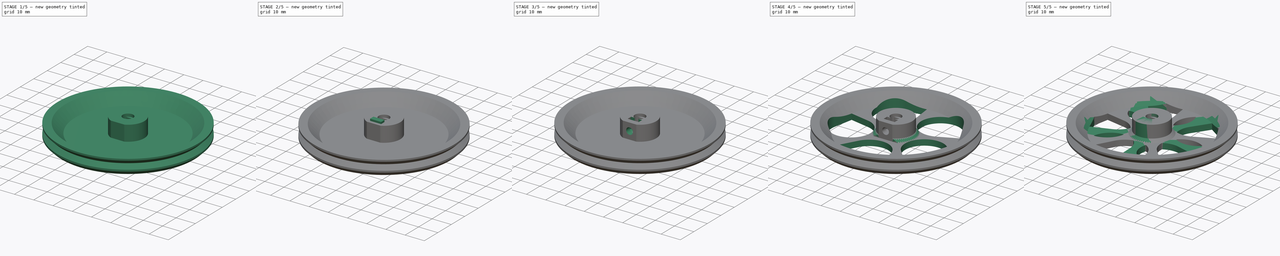
[diagram: build sequence overview — one tinted view per stage of 5, left to right]
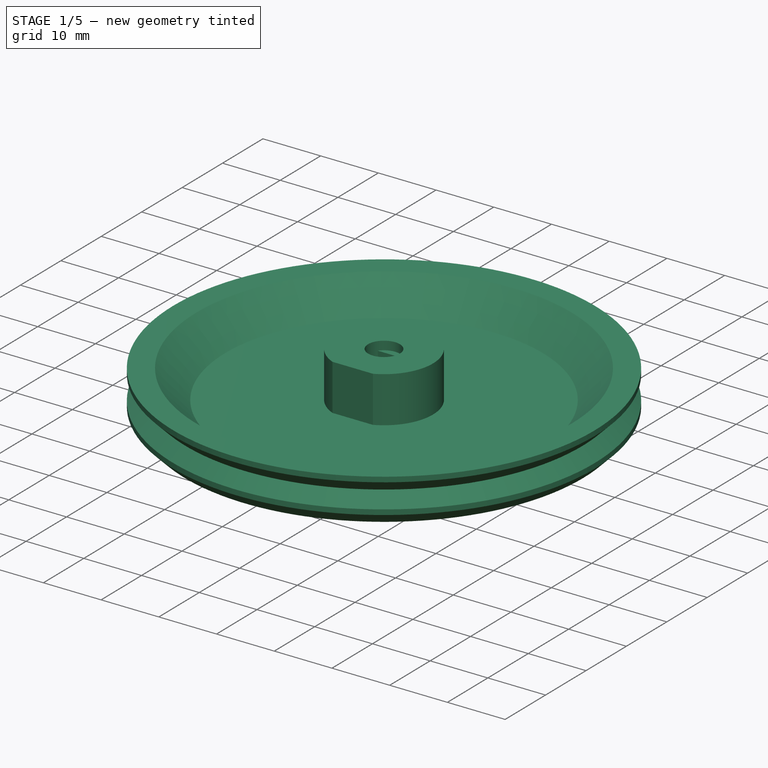
[diagram: stage 1 of 5 — iso view after this stage's code; geometry added in this stage tinted green]
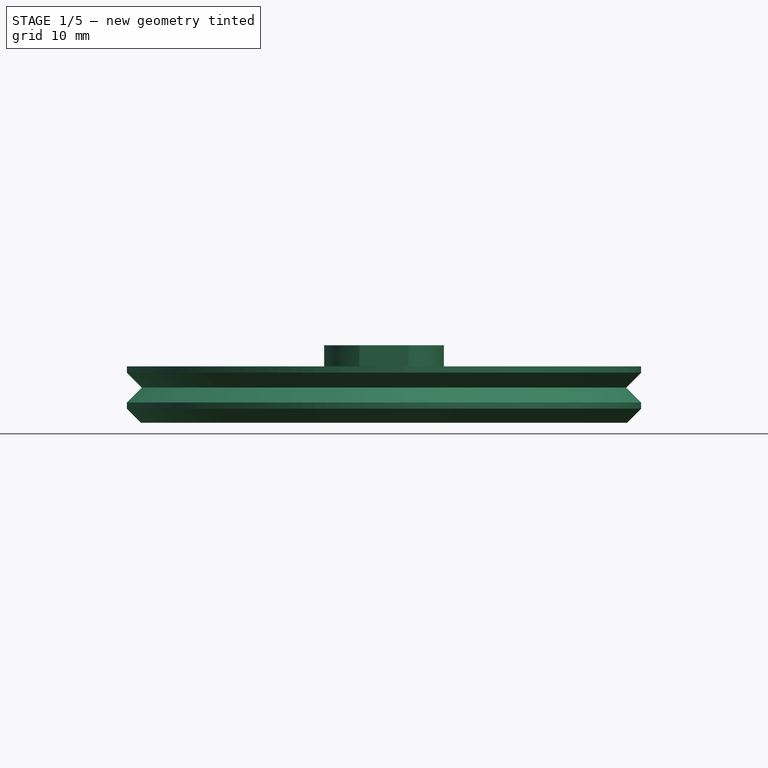
[diagram: stage 1 of 5 — front view after this stage's code; geometry added in this stage tinted green]
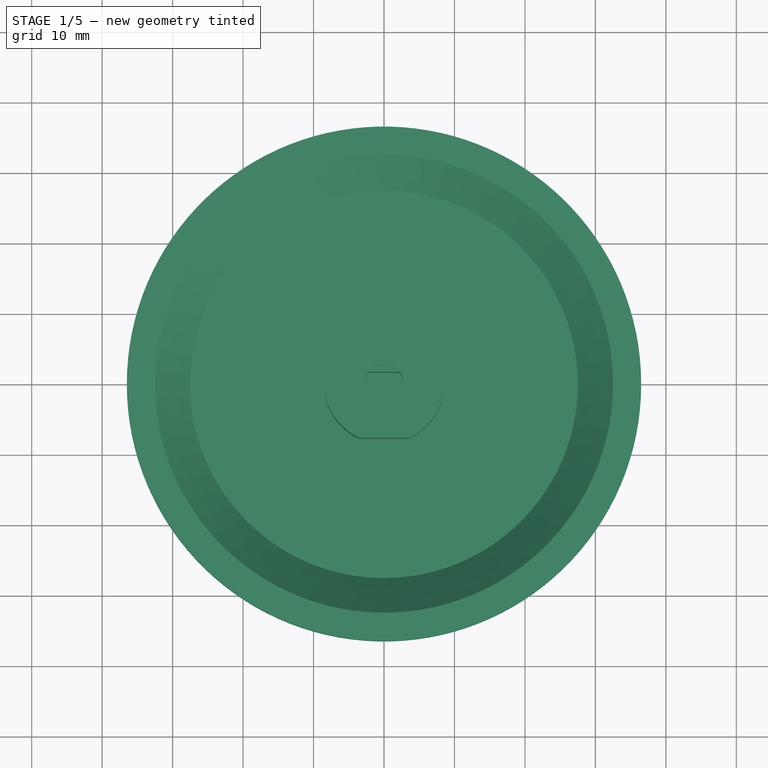
[diagram: stage 1 of 5 — top view after this stage's code; geometry added in this stage tinted green]
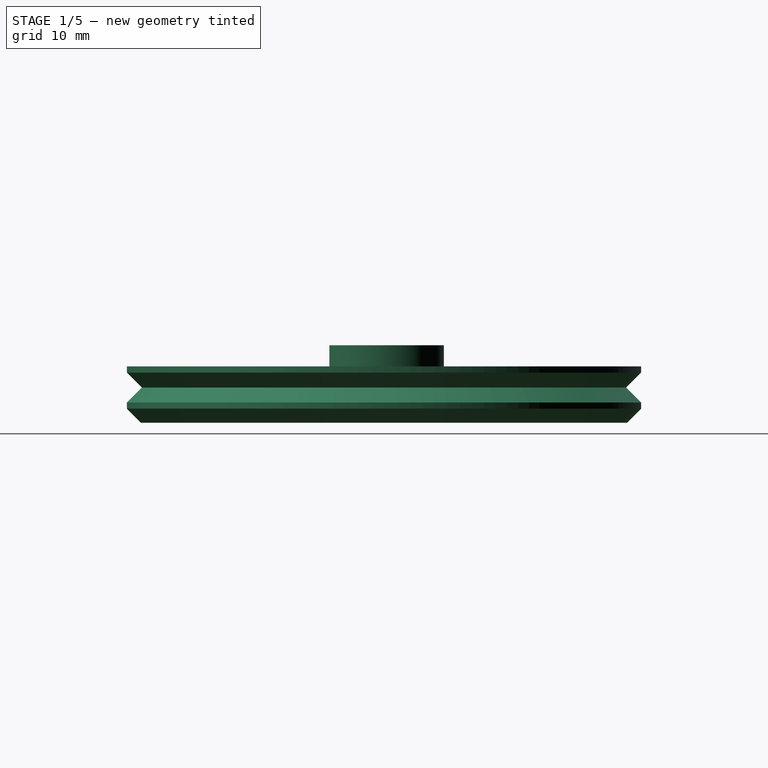
[diagram: stage 1 of 5 — right view after this stage's code; geometry added in this stage tinted green]
FCSTD DOCUMENT  (FreeCAD 0.16R)
Label: wheel
License: The MIT License
LicenseURL: http://opensource.org/licenses/MIT
objects: Sketcher::SketchObject×4, Part::FeaturePython×3, PartDesign::Pad×2, Part::MultiFuse×2, Part::Feature×2, App::DocumentObjectGroup×2, PartDesign::Revolution×1, Part::Box×1, Part::Cylinder×1, Part::Cut×1, Part::Chamfer×1, PartDesign::Pocket×1, PartDesign::PolarPattern×1, Part::Mirroring×1
note: 25 computed .brp shape members not serialized (recipe doc carries the construction recipe); baked Part::Feature solids carry a one-line shape summary decoded from their .brp

FEATURE [Sketcher::SketchObject] Sketch  label="section-sketch"
  Placement = pos=(0,0,0) rot=(1,0,0;1.5708rad)
  sketch-geometry (12):
    g0: Circle [constr] CenterX=36.5 CenterY=0 CenterZ=0 NormalX=0 NormalY=0 NormalZ=1 Radius=1.5
    g1: LineSegment StartX=0 StartY=-2 StartZ=0 EndX=27.5 EndY=-2 EndZ=0
    g2: LineSegment StartX=27.5 StartY=-2 StartZ=0 EndX=32.5 EndY=3 EndZ=0
    g3: LineSegment StartX=32.5 StartY=3 StartZ=0 EndX=36.5 EndY=3 EndZ=0
    g4: LineSegment StartX=36.5 StartY=3 StartZ=0 EndX=36.5 EndY=2.12132 EndZ=0
    g5: LineSegment StartX=36.5 StartY=2.12132 StartZ=0 EndX=34.3787 EndY=0 EndZ=0
    g6: LineSegment StartX=34.3787 StartY=0 StartZ=0 EndX=36.5 EndY=-2.12132 EndZ=0
    g7: LineSegment StartX=36.5 StartY=-2.12132 StartZ=0 EndX=36.5 EndY=-3 EndZ=0
    g8: LineSegment StartX=36.5 StartY=-3 StartZ=0 EndX=34.5 EndY=-5 EndZ=0
    g9: LineSegment StartX=34.5 StartY=-5 StartZ=0 EndX=0 EndY=-5 EndZ=0
    g10: LineSegment StartX=0 StartY=-5 StartZ=0 EndX=0 EndY=-2 EndZ=0
    g11: LineSegment [constr] StartX=36.5 StartY=2.12132 StartZ=0 EndX=36.5 EndY=-2.12132 EndZ=0
  constraints (34):
    c: PointOnObject(g0,g-1)
    c: Radius(g0) = 1.5
    c: DistanceX(g-1,g0) = 36.5
    c: Coincident(g1,g2)
    c: Coincident(g2,g3)
    c: Coincident(g3,g4)
    c: Coincident(g4,g5)
    c: Coincident(g6,g7)
    c: Coincident(g7,g8)
    c: Coincident(g8,g9)
    c: Coincident(g9,g10)
    c: Coincident(g10,g1)
    c: Vertical(g10)
    c: Vertical(g7)
    c: Vertical(g4)
    c: Horizontal(g9)
    c: Horizontal(g1)
    c: Horizontal(g3)
    c: PointOnObject(g1,g-2)
    c: Tangent(g0,g6)
    c: Tangent(g5,g0)
    c: DistanceY(g10) = 3
    c: Vertical(g11)
    c: PointOnObject(g0,g11)
    c: Coincident(g11,g4)
    c: Coincident(g11,g6)
    c: DistanceY(g3,g7) = -6
    c: Equal(g7,g4)
    c: DistanceY(g-1,g1) = -2
    c: Perpendicular(g5,g6)
    c: PointOnObject(g5,g-1)
    c: Parallel(g2,g5)
    c: Parallel(g5,g8)
    c: DistanceX(g3) = 4
FEATURE [PartDesign::Revolution] Revolution  label="section-revolution"
  Angle = 360
  Axis = (0,0,1)
  Base = (0,0,0)
  Placement = pos=(0,0,0) rot=(1,0,0;1.5708rad)
  ReferenceAxis = -> Sketch [V_Axis]
  Reversed = true
  Sketch = -> Sketch
FEATURE [Part::Box] Box  label="shaft-recess-cube"
  Height = 7.5
  Length = 6
  Placement = pos=(-3,1.625,-3) rot=(0,0,1;0rad)
  Width = 3
FEATURE [Sketcher::SketchObject] Sketch003  label="shaft-sketch"
  Placement = pos=(0,0,-2) rot=(0,0,1;3.14159rad)
  Support = -> Revolution [Face1]
  sketch-geometry (3):
    g0: ArcOfCircle CenterX=0 CenterY=0 CenterZ=0 NormalX=0 NormalY=0 NormalZ=1 Radius=8.5 StartAngle=1.99403 EndAngle=7.43075
    g1: Circle CenterX=0 CenterY=0 CenterZ=0 NormalX=0 NormalY=0 NormalZ=1 Radius=2.75
    g2: LineSegment StartX=3.49106 StartY=7.75 StartZ=0 EndX=-3.49106 EndY=7.75 EndZ=0
  constraints (8):
    c: Coincident(g0,g-1)
    c: Radius(g0) = 8.5
    c: Coincident(g1,g-1)
    c: Radius(g1) = 2.75
    c: Horizontal(g2)
    c: Coincident(g2,g0)
    c: Coincident(g2,g0)
    c: DistanceY(g-1,g0) = 7.75
FEATURE [PartDesign::Pad] Pad001  label="shaft-pad"
  Length = 8
  Length2 = 100
  Placement = pos=(0,0,0) rot=(1,0,0;1.5708rad)
  Sketch = -> Sketch003
  Type = 0
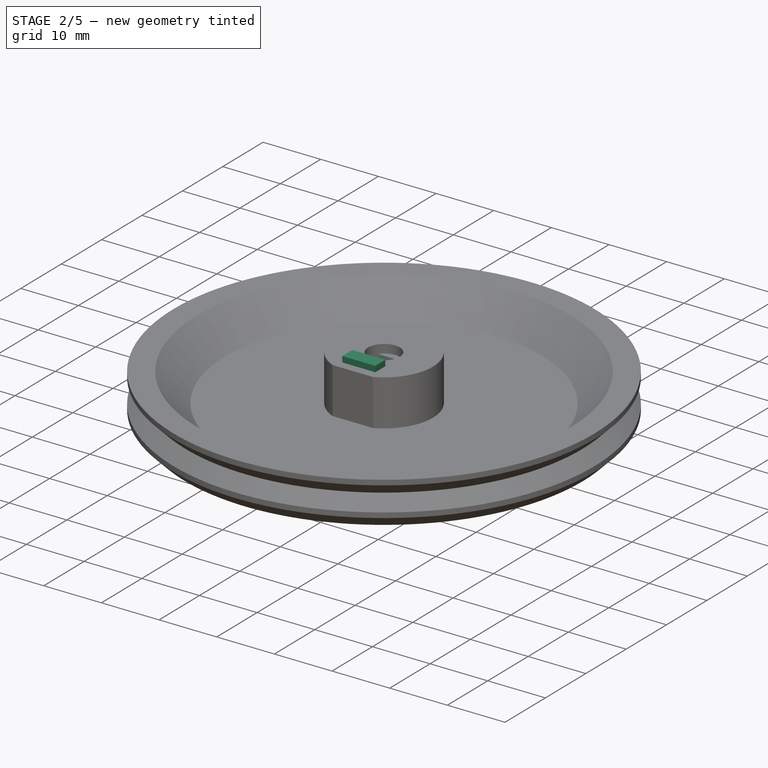
[diagram: stage 2 of 5 — iso view after this stage's code; geometry added in this stage tinted green]
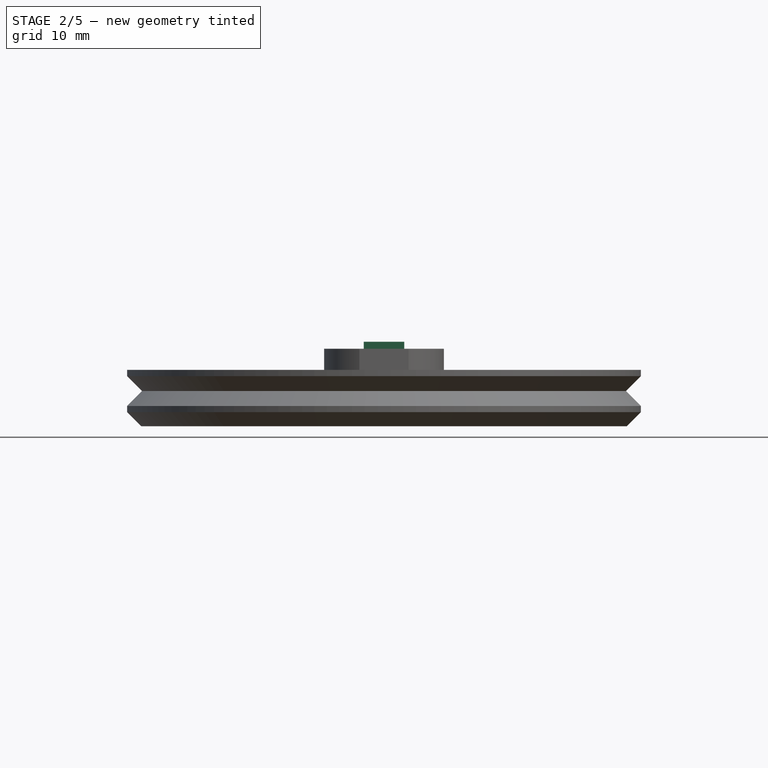
[diagram: stage 2 of 5 — front view after this stage's code; geometry added in this stage tinted green]
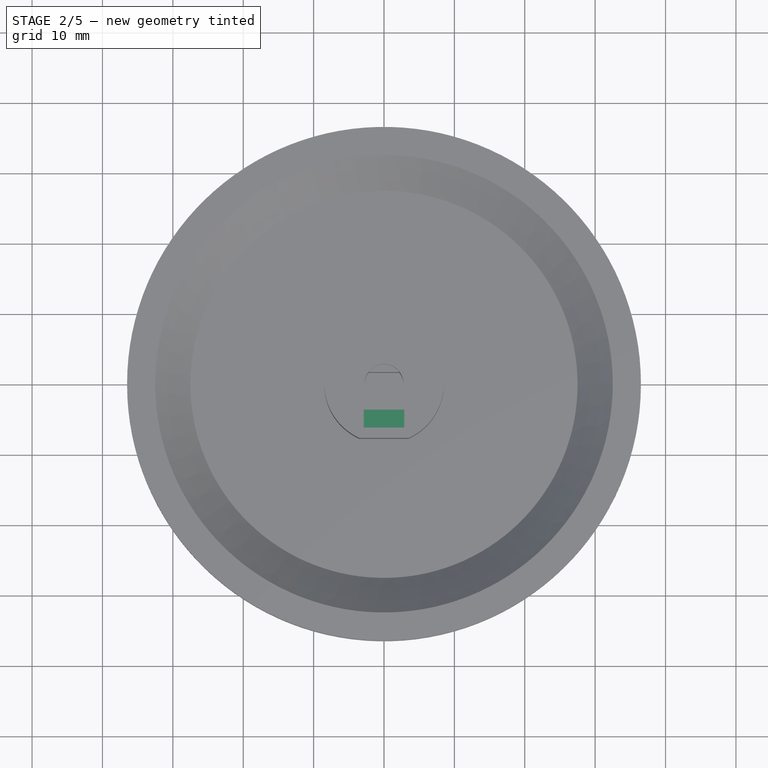
[diagram: stage 2 of 5 — top view after this stage's code; geometry added in this stage tinted green]
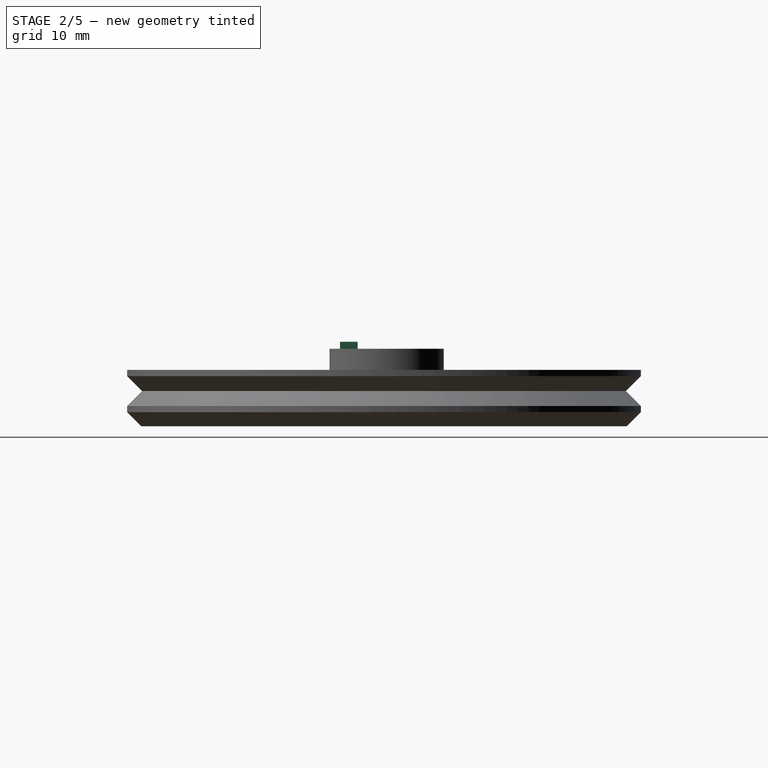
[diagram: stage 2 of 5 — right view after this stage's code; geometry added in this stage tinted green]
FEATURE [Sketcher::SketchObject] Sketch002  label="captive-nut-sketch"
  Placement = pos=(0,0,0) rot=(1,0,0;1.5708rad)
  sketch-geometry (6):
    g0: Circle [constr] CenterX=0 CenterY=0 CenterZ=0 NormalX=0 NormalY=0 NormalZ=1 Radius=3.31976
    g1: LineSegment StartX=-2.875 StartY=5 StartZ=0 EndX=2.875 EndY=5 EndZ=0
    g2: LineSegment StartX=2.875 StartY=5 StartZ=0 EndX=2.875 EndY=-1.65988 EndZ=0
    g3: LineSegment StartX=2.875 StartY=-1.65988 StartZ=0 EndX=0 EndY=-3.31976 EndZ=0
    g4: LineSegment StartX=0 StartY=-3.31976 StartZ=0 EndX=-2.875 EndY=-1.65988 EndZ=0
    g5: LineSegment StartX=-2.875 StartY=-1.65988 StartZ=0 EndX=-2.875 EndY=5 EndZ=0
  constraints (17):
    c: Coincident(g0,g-1)
    c: Horizontal(g1)
    c: Coincident(g1,g2)
    c: Coincident(g2,g3)
    c: Coincident(g3,g4)
    c: Coincident(g4,g5)
    c: Coincident(g5,g1)
    c: Vertical(g5)
    c: Vertical(g2)
    c: PointOnObject(g2,g0)
    c: PointOnObject(g3,g0)
    c: PointOnObject(g4,g0)
    c: Angle(g3,g4) = 2.0944
    c: DistanceY(g-1,g1) = 5
    c: DistanceX(g1) = 5.75
    c: Equal(g4,g3)
    c: PointOnObject(g3,g-2)
FEATURE [PartDesign::Pad] Pad  label="captive-nut-pad"
  Length = 2.5
  Length2 = 100
  Placement = pos=(0,0,0) rot=(1,0,0;1.5708rad)
  Sketch = -> Sketch002
  Type = 0
FEATURE [Part::FeaturePython] Clone  label="captive-nut"  # Draft clone (typed FeaturePython)
  Objects = -> [Pad]
  Placement = pos=(0,-3.75,2) rot=(1,0,0;1.5708rad)
  Scale = (1,1,1)
FEATURE [Part::MultiFuse] Fusion001  label="shaft-fusion"
  Shapes = -> [Pad001,Box]
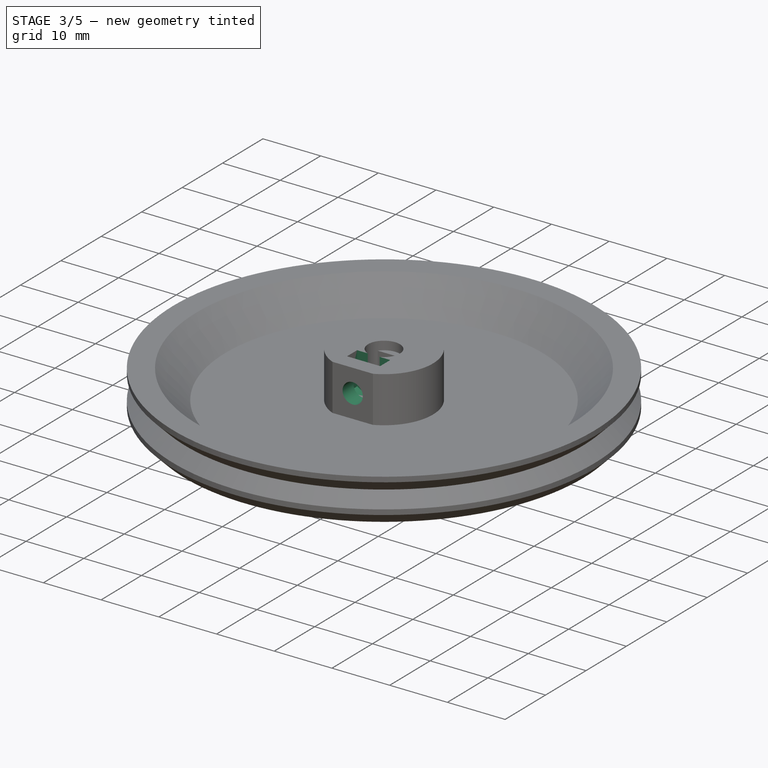
[diagram: stage 3 of 5 — iso view after this stage's code; geometry added in this stage tinted green]
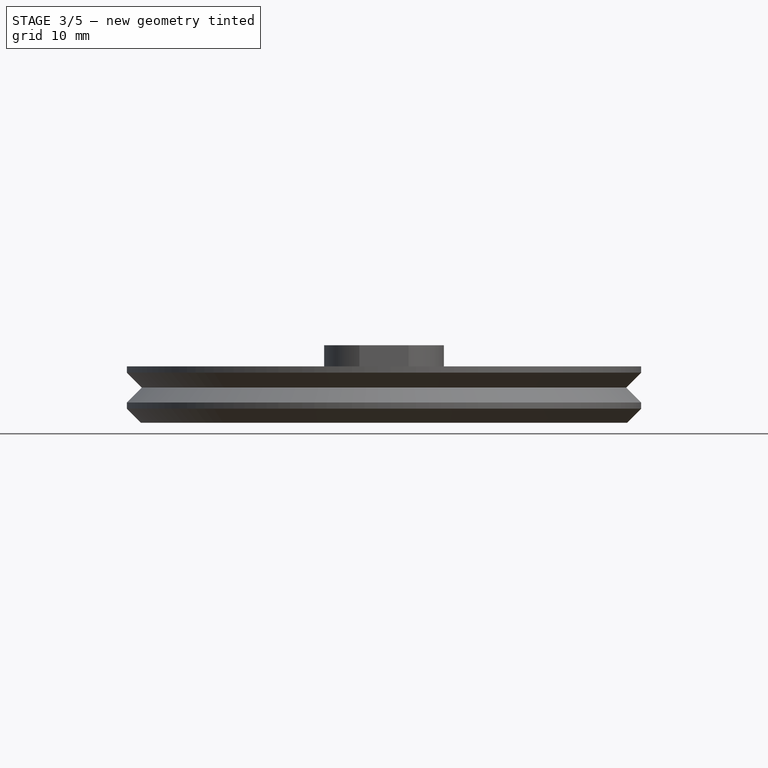
[diagram: stage 3 of 5 — front view after this stage's code; geometry added in this stage tinted green]
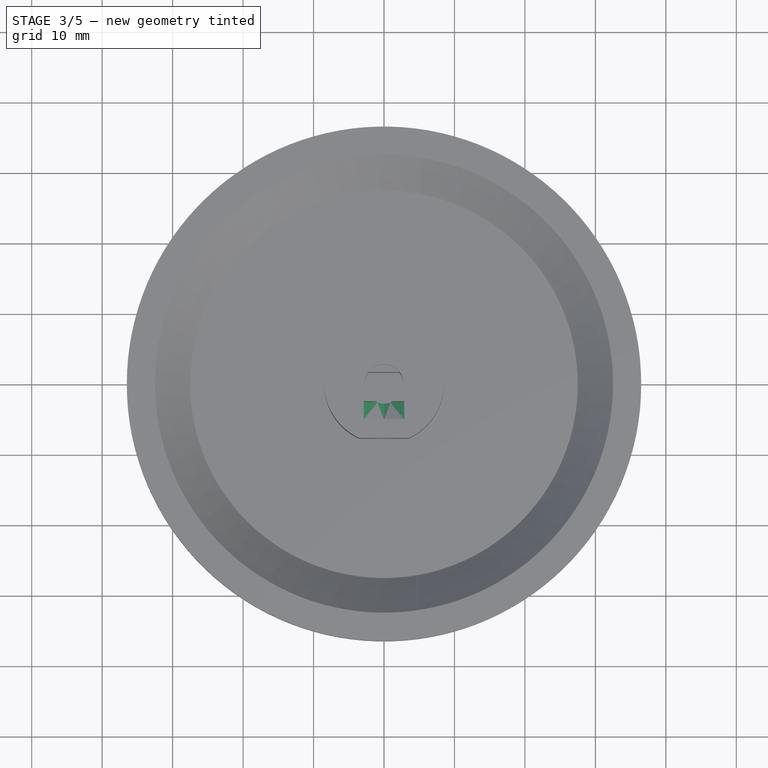
[diagram: stage 3 of 5 — top view after this stage's code; geometry added in this stage tinted green]
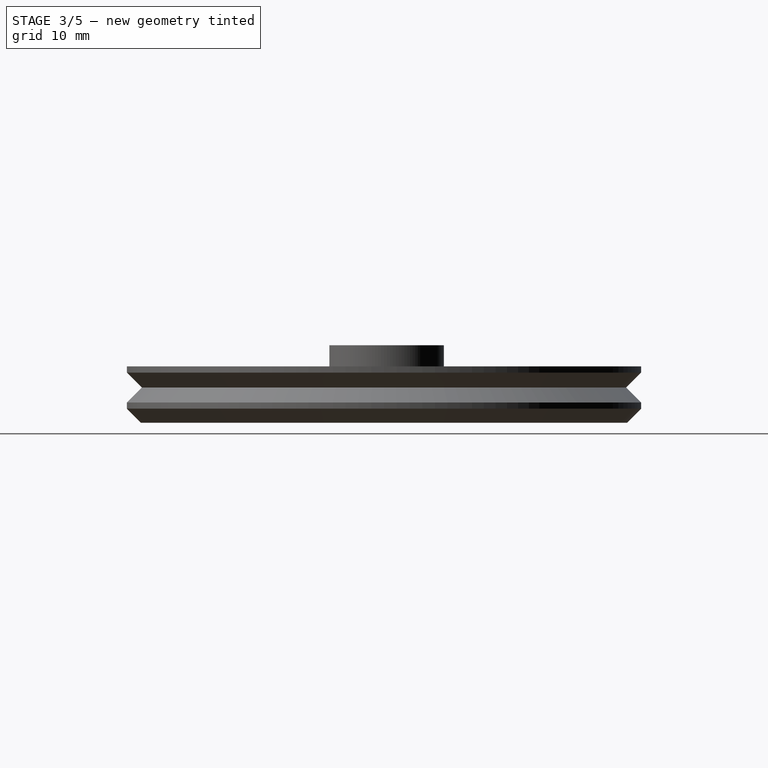
[diagram: stage 3 of 5 — right view after this stage's code; geometry added in this stage tinted green]
FEATURE [Part::Cylinder] Cylinder001  label="screw-cylinder"
  Angle = 360
  Height = 10
  Placement = pos=(0,0,2) rot=(1,0,0;1.5708rad)
  Radius = 1.75
FEATURE [Part::MultiFuse] Fusion  label="captive-nut-screw-fusion"
  Placement = pos=(0,1.2,0) rot=(0,0,1;0rad)
  Shapes = -> [Cylinder001,Clone]
FEATURE [Part::Cut] Cut  label="shaft-nut-cut"
  Base = -> Fusion001
  Tool = -> Fusion
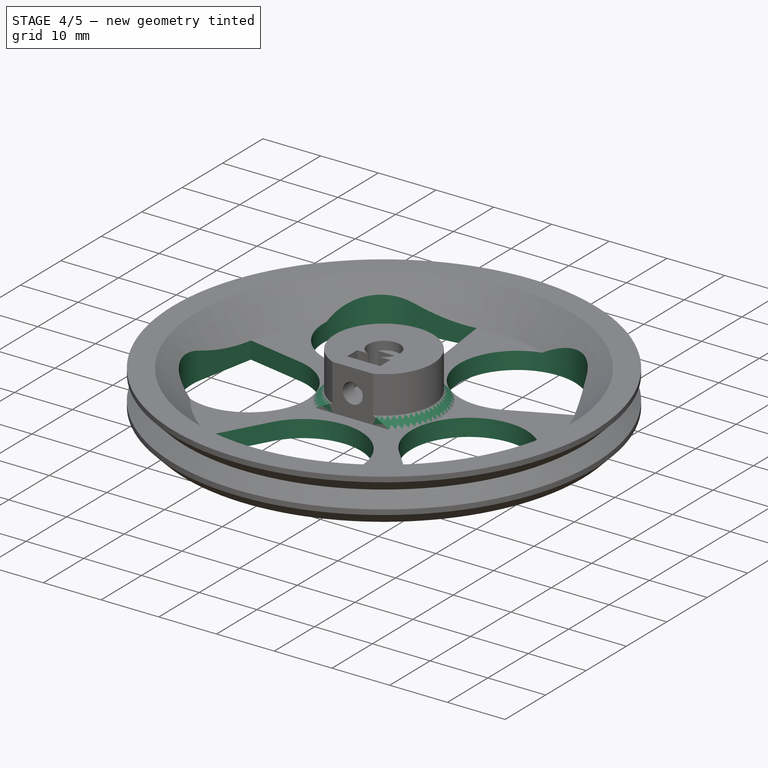
[diagram: stage 4 of 5 — iso view after this stage's code; geometry added in this stage tinted green]
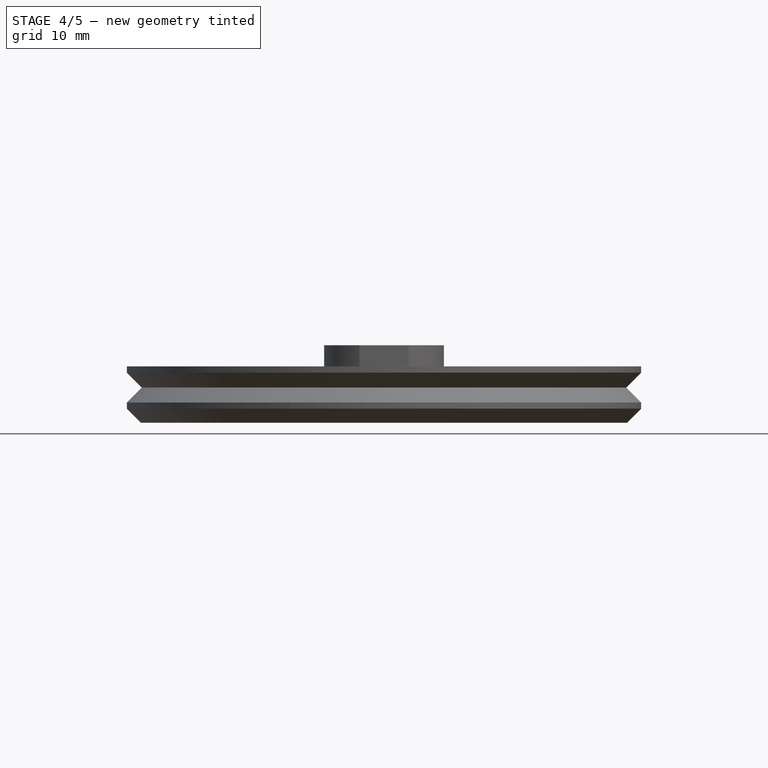
[diagram: stage 4 of 5 — front view after this stage's code; geometry added in this stage tinted green]
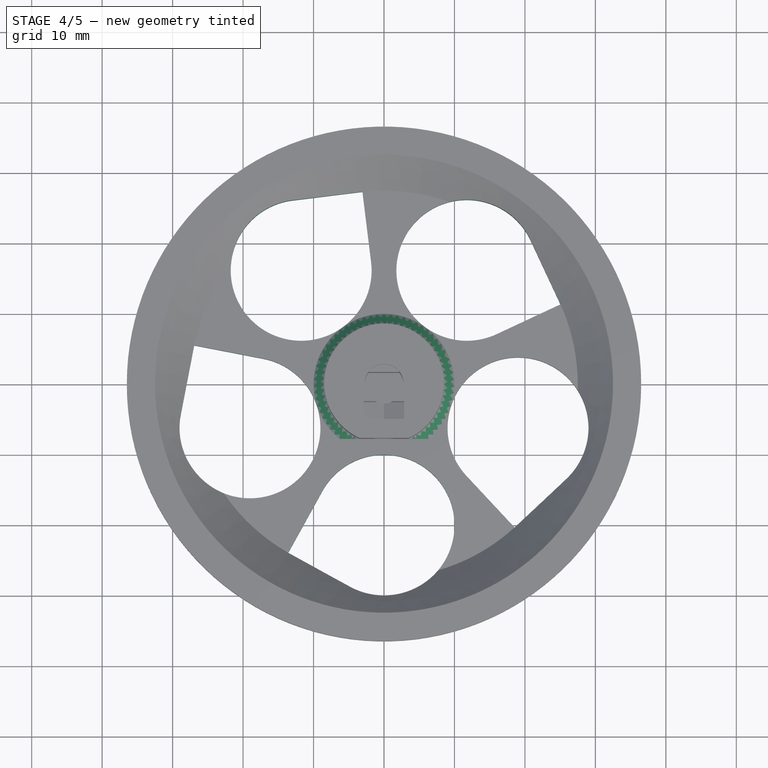
[diagram: stage 4 of 5 — top view after this stage's code; geometry added in this stage tinted green]
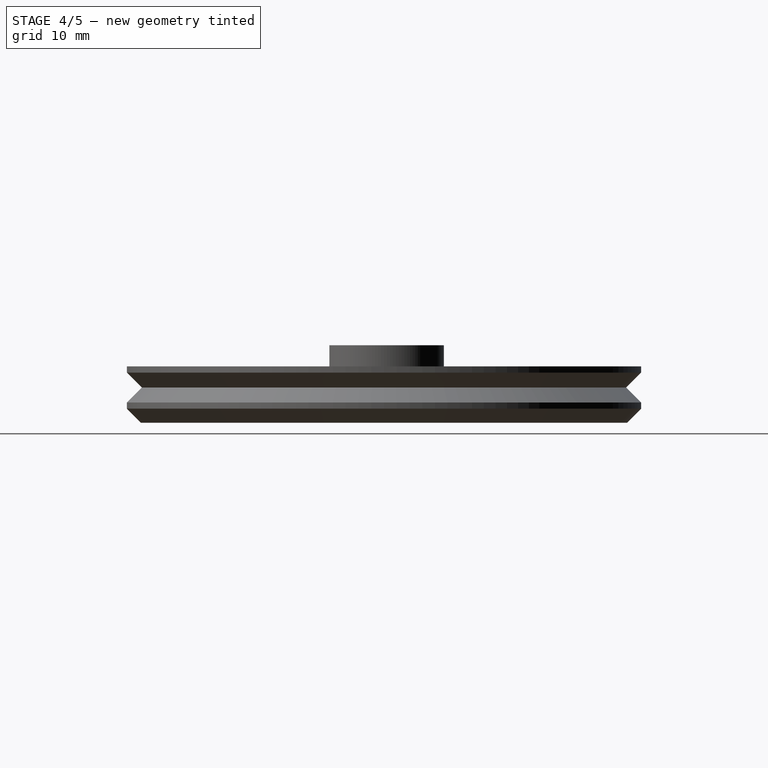
[diagram: stage 4 of 5 — right view after this stage's code; geometry added in this stage tinted green]
FEATURE [Part::Chamfer] Chamfer  label="shaft-chamfer"
  Base = -> Cut
  Edges = 1 edges r=1.5: [Edge4]
FEATURE [Sketcher::SketchObject] Sketch004  label="wheel-cutout-sketch"
  Placement = pos=(0,0,-5) rot=(1,0,0;3.14159rad)
  Support = -> Chamfer [Face27]
  sketch-geometry (4):
    g0: ArcOfCircle CenterX=0 CenterY=20 CenterZ=0 NormalX=0 NormalY=0 NormalZ=1 Radius=10 StartAngle=3.64714 EndAngle=8.35953
    g1: Circle [constr] CenterX=0 CenterY=0 CenterZ=0 NormalX=0 NormalY=0 NormalZ=1 Radius=27.5
    g2: LineSegment StartX=-8.7491 StartY=15.1571 StartZ=0 EndX=-13.592 EndY=23.9062 EndZ=0
    g3: LineSegment StartX=-13.592 StartY=23.9062 StartZ=0 EndX=-4.84285 EndY=28.7491 EndZ=0
  constraints (9):
    c: Radius(g0) = 10
    c: Coincident(g1,g-1)
    c: Tangent(g0,g2)
    c: Tangent(g0,g3)
    c: Perpendicular(g2,g3)
    c: PointOnObject(g2,g1)
    c: Radius(g1) = 27.5
    c: DistanceY(g-1,g0) = 20
    c: PointOnObject(g0,g-2)
FEATURE [Part::Feature] Part__Feature  label="oring-right"
  shape: bbox 82.26 x 82.26 x 3 mm, 1 faces (baked)
FEATURE [Part::Feature] Part__Feature001  label="oring-left"
  shape: bbox 82.26 x 82.26 x 3 mm, 1 faces (baked)
FEATURE [App::DocumentObjectGroup] Group  label="components"
  Group = -> [Part__Feature001,Part__Feature]
FEATURE [PartDesign::Pocket] Pocket
  Length = 5
  Sketch = -> Sketch004
  Type = 1
FEATURE [PartDesign::PolarPattern] PolarPattern
  Angle = 360
  Axis = -> Sketch004 [N_Axis]
  Occurrences = 5
  Originals = -> [Pocket]
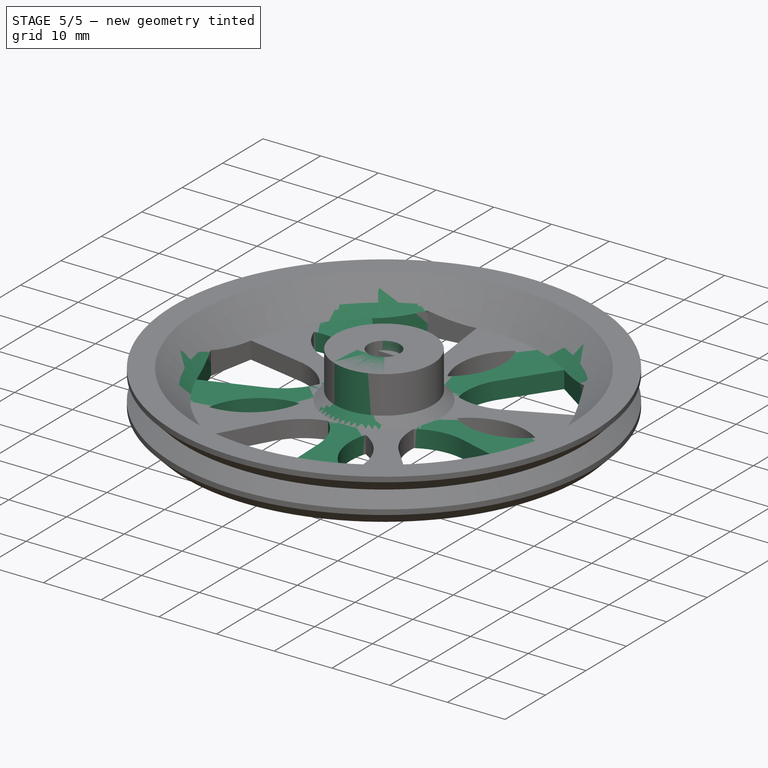
[diagram: stage 5 of 5 — iso view after this stage's code; geometry added in this stage tinted green]
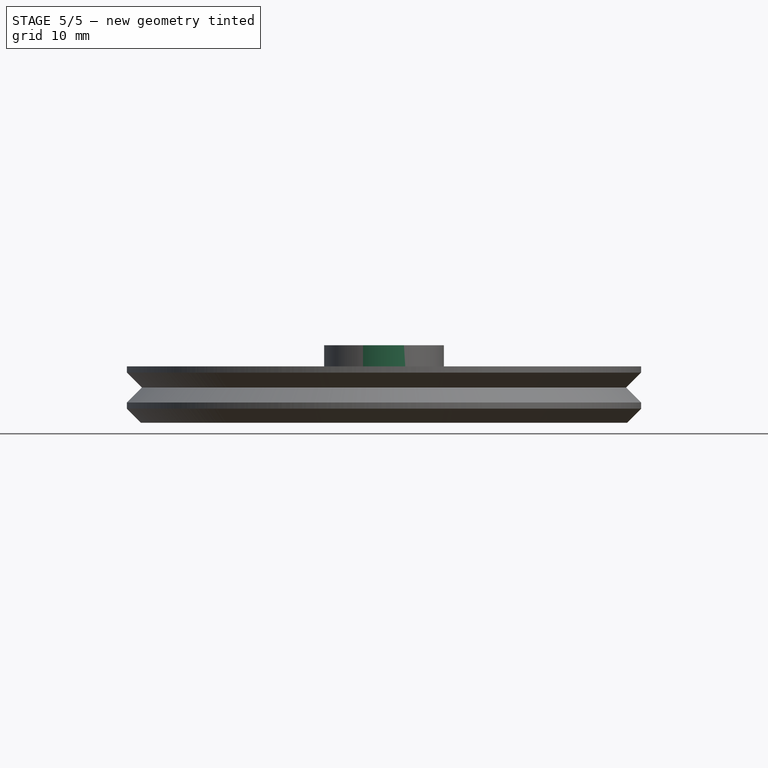
[diagram: stage 5 of 5 — front view after this stage's code; geometry added in this stage tinted green]
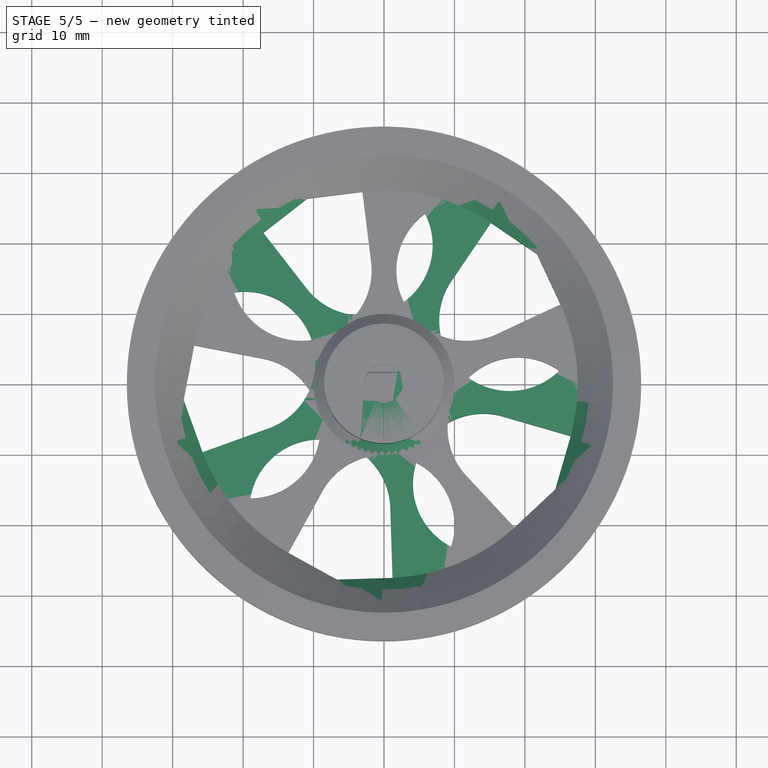
[diagram: stage 5 of 5 — top view after this stage's code; geometry added in this stage tinted green]
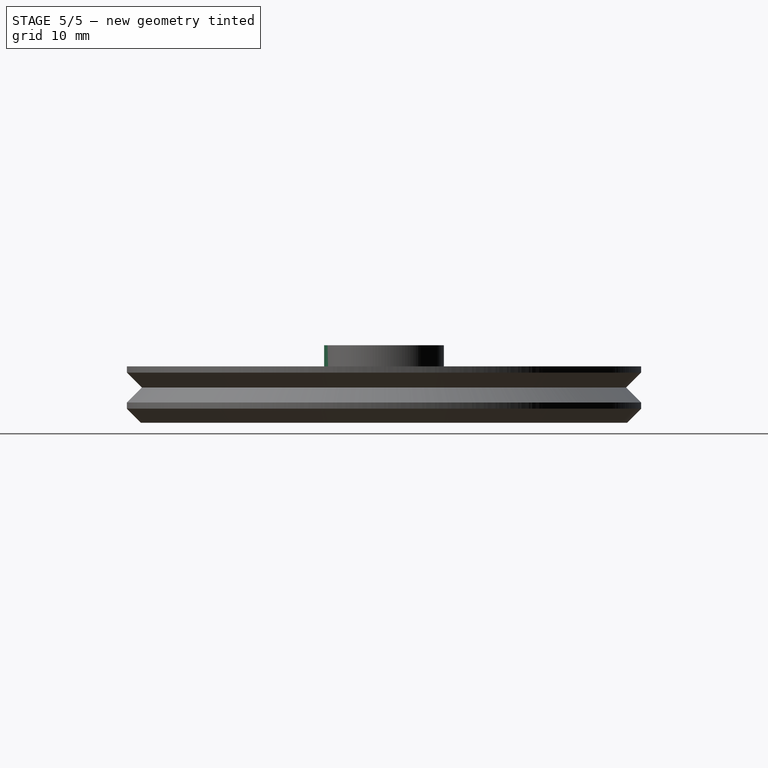
[diagram: stage 5 of 5 — right view after this stage's code; geometry added in this stage tinted green]
FEATURE [Part::FeaturePython] Clone001  label="wheel-r"  # Draft clone (typed FeaturePython)
  Objects = -> [PolarPattern]
  Scale = (1,1,1)
FEATURE [Part::Mirroring] mirror  label="Mirror of PolarPattern"
  Base = (0,0,0)
  Normal = (0.648762,-0.760991,0)
  Source = -> PolarPattern
FEATURE [App::DocumentObjectGroup] Group001  label="design"
  Group = -> [Revolution,Pad,Chamfer,Pocket,mirror]
FEATURE [Part::FeaturePython] Clone002  label="wheel-l"  # Draft clone (typed FeaturePython)
  Objects = -> [mirror]
  Scale = (1,1,1)
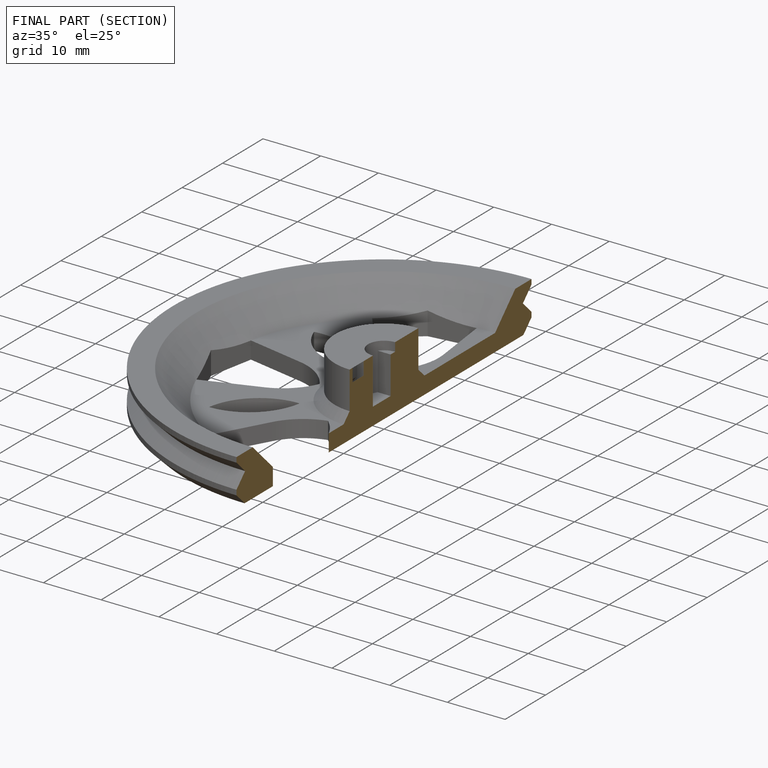
[diagram: finished part — half-section view (interior)]
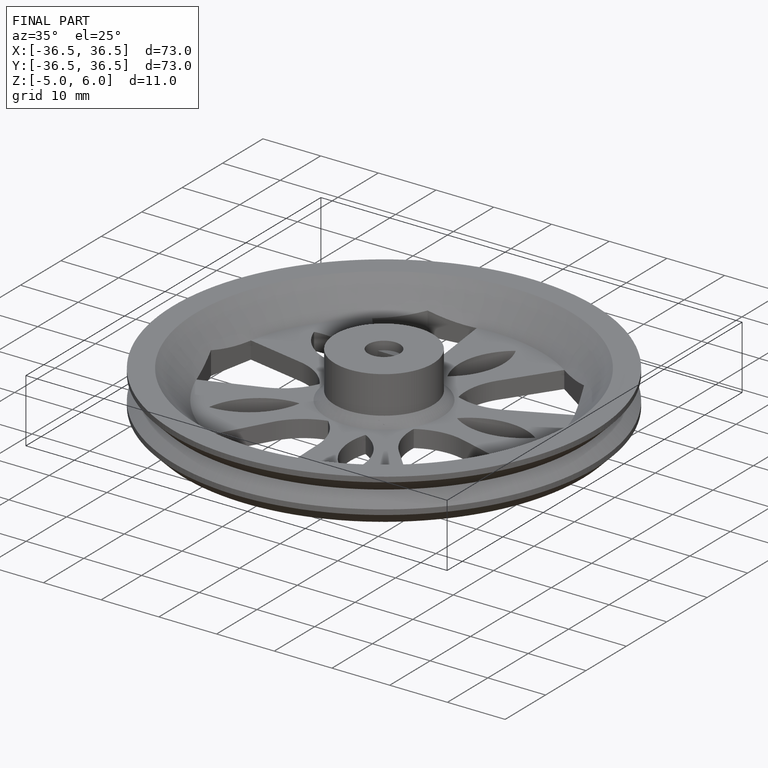
[diagram: finished part — iso view with bounding-box wireframe]
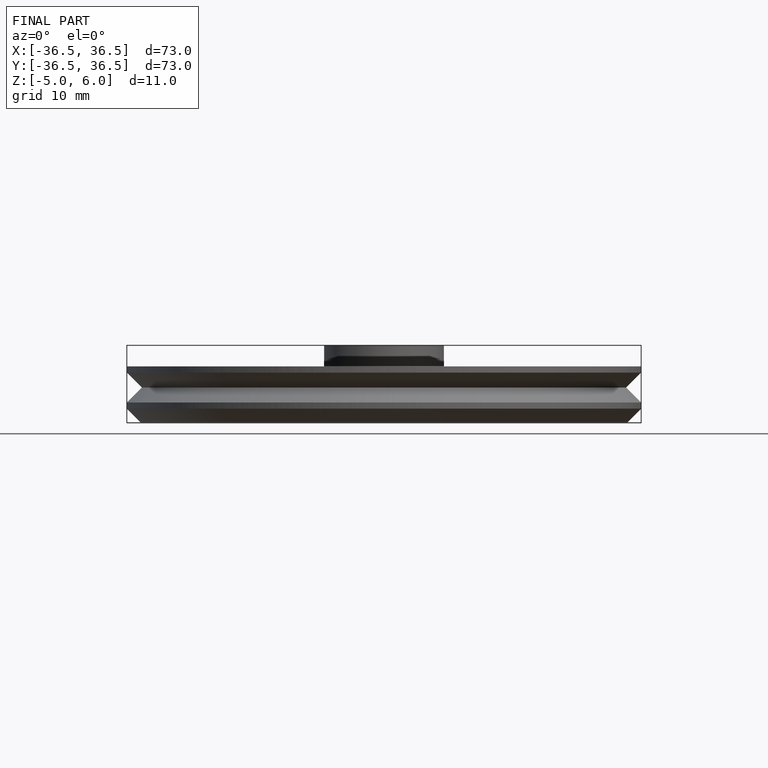
[diagram: finished part — front view with bounding-box wireframe]
